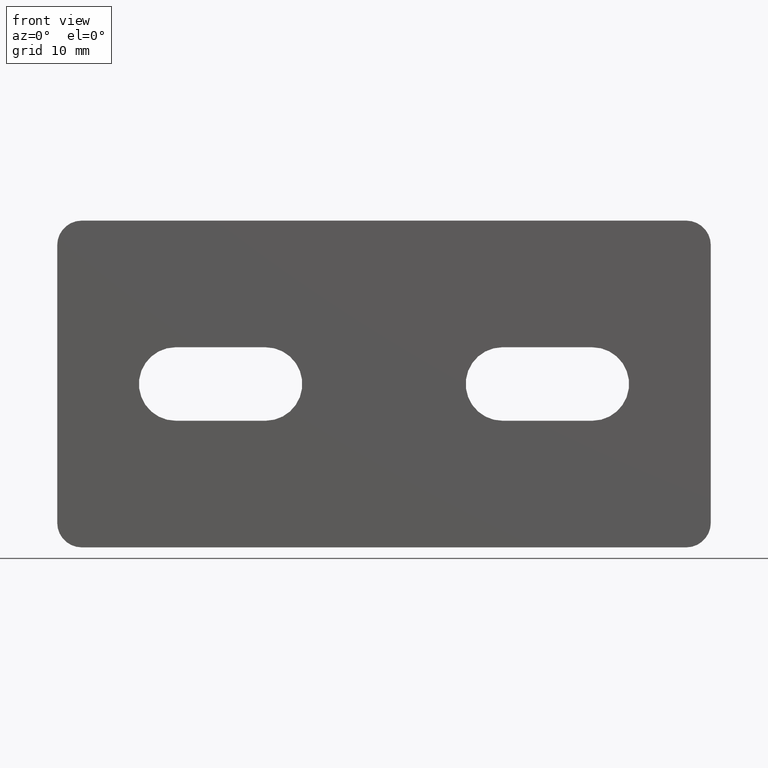
[diagram: clean part render]
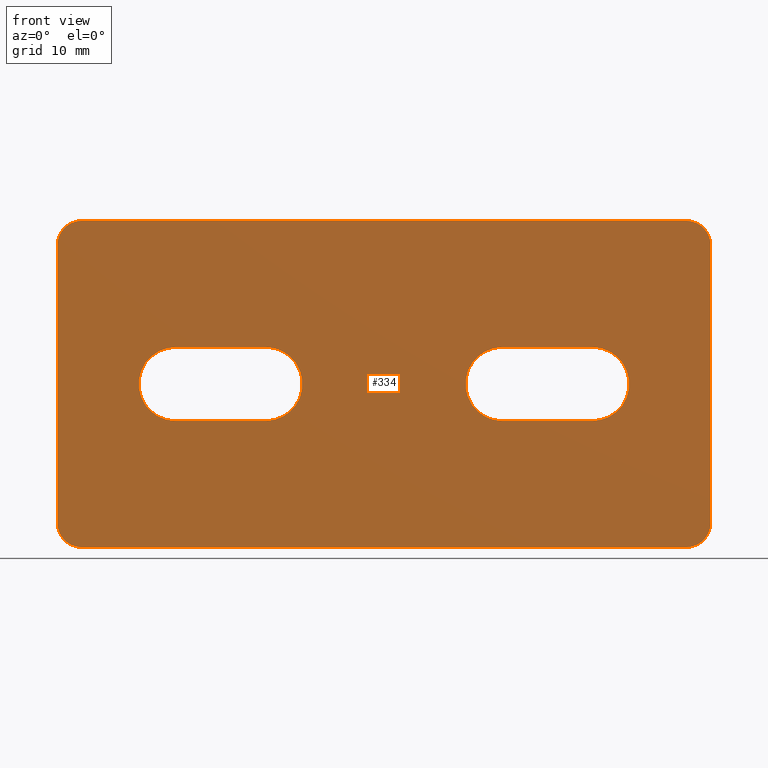
[diagram: same view with one face highlighted and labeled with its STEP entity id]
A machine part, front view. The second image highlights one B-rep face of the part: STEP entity #334.
In plain terms, the highlighted planar face has unit normal (0, -1, 0).
Its self-contained STEP definition (entity closure, byte-faithful):
#25=FACE_BOUND('',#49,.T.);
#26=FACE_BOUND('',#50,.T.);
#28=FACE_OUTER_BOUND('',#48,.T.);
#48=EDGE_LOOP('',(#243,#244,#245,#246,#247,#248,#249,#250));
#49=EDGE_LOOP('',(#251,#252,#253,#254));
#50=EDGE_LOOP('',(#255,#256,#257,#258));
#75=CIRCLE('',#384,3.);
#76=CIRCLE('',#385,3.);
#77=CIRCLE('',#386,3.);
#78=CIRCLE('',#387,3.);
#79=CIRCLE('',#388,4.5);
#80=CIRCLE('',#389,4.5);
#81=CIRCLE('',#390,4.5);
#82=CIRCLE('',#391,4.5);
#91=LINE('',#547,#123);
#92=LINE('',#551,#124);
#93=LINE('',#555,#125);
#94=LINE('',#559,#126);
#95=LINE('',#563,#127);
#96=LINE('',#567,#128);
#97=LINE('',#571,#129);
#98=LINE('',#575,#130);
#123=VECTOR('',#438,1000.);
#124=VECTOR('',#441,1000.);
#125=VECTOR('',#444,1000.);
#126=VECTOR('',#447,1000.);
#127=VECTOR('',#450,1000.);
#128=VECTOR('',#453,1000.);
#129=VECTOR('',#456,1000.);
#130=VECTOR('',#459,1000.);
#163=VERTEX_POINT('',#545);
#164=VERTEX_POINT('',#546);
#165=VERTEX_POINT('',#548);
#166=VERTEX_POINT('',#550);
#167=VERTEX_POINT('',#552);
#168=VERTEX_POINT('',#554);
#169=VERTEX_POINT('',#556);
#170=VERTEX_POINT('',#558);
#171=VERTEX_POINT('',#561);
#172=VERTEX_POINT('',#562);
#173=VERTEX_POINT('',#564);
#174=VERTEX_POINT('',#566);
#175=VERTEX_POINT('',#569);
#176=VERTEX_POINT('',#570);
#177=VERTEX_POINT('',#572);
#178=VERTEX_POINT('',#574);
#195=EDGE_CURVE('',#163,#164,#91,.T.);
#196=EDGE_CURVE('',#163,#165,#75,.T.);
#197=EDGE_CURVE('',#166,#165,#92,.T.);
#198=EDGE_CURVE('',#166,#167,#76,.T.);
#199=EDGE_CURVE('',#168,#167,#93,.T.);
#200=EDGE_CURVE('',#168,#169,#77,.T.);
#201=EDGE_CURVE('',#170,#169,#94,.T.);
#202=EDGE_CURVE('',#170,#164,#78,.T.);
#203=EDGE_CURVE('',#171,#172,#95,.T.);
#204=EDGE_CURVE('',#172,#173,#79,.T.);
#205=EDGE_CURVE('',#173,#174,#96,.T.);
#206=EDGE_CURVE('',#174,#171,#80,.T.);
#207=EDGE_CURVE('',#175,#176,#97,.T.);
#208=EDGE_CURVE('',#176,#177,#81,.T.);
#209=EDGE_CURVE('',#177,#178,#98,.T.);
#210=EDGE_CURVE('',#178,#175,#82,.T.);
#243=ORIENTED_EDGE('',*,*,#195,.F.);
#244=ORIENTED_EDGE('',*,*,#196,.T.);
#245=ORIENTED_EDGE('',*,*,#197,.F.);
#246=ORIENTED_EDGE('',*,*,#198,.T.);
#247=ORIENTED_EDGE('',*,*,#199,.F.);
#248=ORIENTED_EDGE('',*,*,#200,.T.);
#249=ORIENTED_EDGE('',*,*,#201,.F.);
#250=ORIENTED_EDGE('',*,*,#202,.T.);
#251=ORIENTED_EDGE('',*,*,#203,.T.);
#252=ORIENTED_EDGE('',*,*,#204,.T.);
#253=ORIENTED_EDGE('',*,*,#205,.T.);
#254=ORIENTED_EDGE('',*,*,#206,.T.);
#255=ORIENTED_EDGE('',*,*,#207,.T.);
#256=ORIENTED_EDGE('',*,*,#208,.T.);
#257=ORIENTED_EDGE('',*,*,#209,.T.);
#258=ORIENTED_EDGE('',*,*,#210,.T.);
#324=PLANE('',#383);
#334=ADVANCED_FACE('',(#28,#25,#26),#324,.T.);
#383=AXIS2_PLACEMENT_3D('',#544,#436,#437);
#384=AXIS2_PLACEMENT_3D('',#549,#439,#440);
#385=AXIS2_PLACEMENT_3D('',#553,#442,#443);
#386=AXIS2_PLACEMENT_3D('',#557,#445,#446);
#387=AXIS2_PLACEMENT_3D('',#560,#448,#449);
#388=AXIS2_PLACEMENT_3D('',#565,#451,#452);
#389=AXIS2_PLACEMENT_3D('',#568,#454,#455);
#390=AXIS2_PLACEMENT_3D('',#573,#457,#458);
#391=AXIS2_PLACEMENT_3D('',#576,#460,#461);
#436=DIRECTION('center_axis',(0.,-1.,0.));
#437=DIRECTION('ref_axis',(0.,0.,-1.));
#438=DIRECTION('',(0.,0.,1.));
#439=DIRECTION('center_axis',(0.,-1.,0.));
#440=DIRECTION('ref_axis',(0.,0.,-1.));
#441=DIRECTION('',(-1.,0.,0.));
#442=DIRECTION('center_axis',(0.,-1.,0.));
#443=DIRECTION('ref_axis',(0.,0.,-1.));
#444=DIRECTION('',(0.,0.,-1.));
#445=DIRECTION('center_axis',(0.,-1.,0.));
#446=DIRECTION('ref_axis',(0.,0.,-1.));
#447=DIRECTION('',(1.,0.,0.));
#448=DIRECTION('center_axis',(0.,-1.,0.));
#449=DIRECTION('ref_axis',(0.,0.,-1.));
#450=DIRECTION('',(-1.,0.,0.));
#451=DIRECTION('center_axis',(0.,1.,0.));
#452=DIRECTION('ref_axis',(0.,0.,-1.));
#453=DIRECTION('',(1.,0.,0.));
#454=DIRECTION('center_axis',(0.,1.,0.));
#455=DIRECTION('ref_axis',(0.,0.,-1.));
#456=DIRECTION('',(1.,0.,0.));
#457=DIRECTION('center_axis',(0.,1.,0.));
#458=DIRECTION('ref_axis',(0.,0.,1.));
#459=DIRECTION('',(-1.,0.,0.));
#460=DIRECTION('center_axis',(0.,1.,0.));
#461=DIRECTION('ref_axis',(0.,0.,1.));
#544=CARTESIAN_POINT('Origin',(-40.,0.,-20.));
#545=CARTESIAN_POINT('',(-40.,0.,-17.));
#546=CARTESIAN_POINT('',(-40.,0.,17.));
#547=CARTESIAN_POINT('',(-40.,0.,20.));
#548=CARTESIAN_POINT('',(-37.,0.,-20.));
#549=CARTESIAN_POINT('Origin',(-37.,0.,-17.));
#550=CARTESIAN_POINT('',(37.,0.,-20.));
#551=CARTESIAN_POINT('',(-40.,0.,-20.));
#552=CARTESIAN_POINT('',(40.,0.,-17.));
#553=CARTESIAN_POINT('Origin',(37.,0.,-17.));
#554=CARTESIAN_POINT('',(40.,0.,17.));
#555=CARTESIAN_POINT('',(40.,0.,20.));
#556=CARTESIAN_POINT('',(37.,0.,20.));
#557=CARTESIAN_POINT('Origin',(37.,0.,17.));
#558=CARTESIAN_POINT('',(-37.,0.,20.));
#559=CARTESIAN_POINT('',(-40.,0.,20.));
#560=CARTESIAN_POINT('Origin',(-37.,0.,17.));
#561=CARTESIAN_POINT('',(25.5,0.,-4.5));
#562=CARTESIAN_POINT('',(14.5,0.,-4.5));
#563=CARTESIAN_POINT('',(14.5,0.,-4.5));
#564=CARTESIAN_POINT('',(14.5,0.,4.5));
#565=CARTESIAN_POINT('Origin',(14.5,0.,0.));
#566=CARTESIAN_POINT('',(25.5,0.,4.5));
#567=CARTESIAN_POINT('',(25.5,0.,4.5));
#568=CARTESIAN_POINT('Origin',(25.5,0.,0.));
#569=CARTESIAN_POINT('',(-25.5,0.,4.5));
#570=CARTESIAN_POINT('',(-14.5,0.,4.5));
#571=CARTESIAN_POINT('',(-25.5,0.,4.5));
#572=CARTESIAN_POINT('',(-14.5,0.,-4.5));
#573=CARTESIAN_POINT('Origin',(-14.5,0.,0.));
#574=CARTESIAN_POINT('',(-25.5,0.,-4.5));
#575=CARTESIAN_POINT('',(-14.5,0.,-4.5));
#576=CARTESIAN_POINT('Origin',(-25.5,0.,0.));